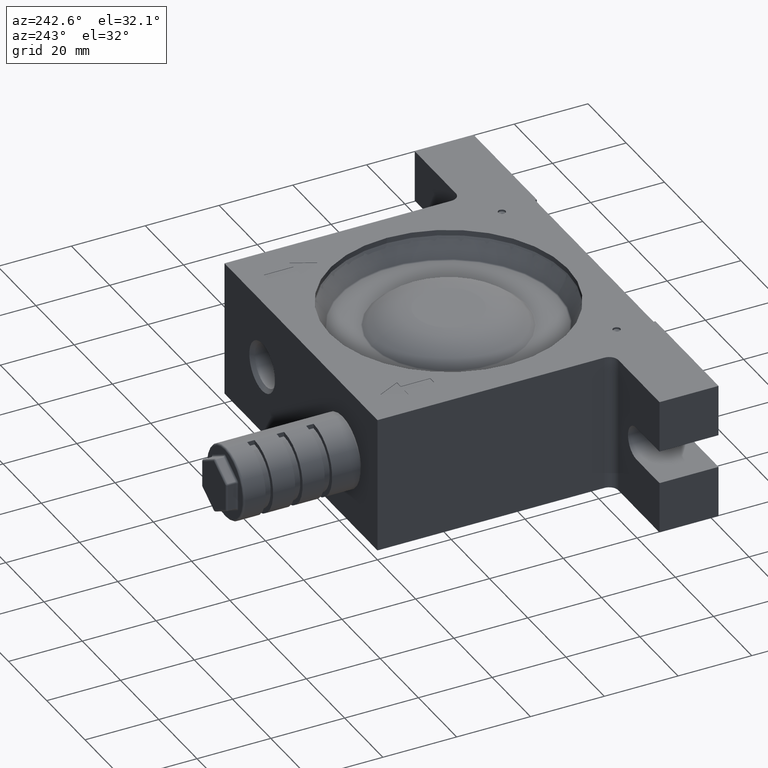
[diagram: clean part render]
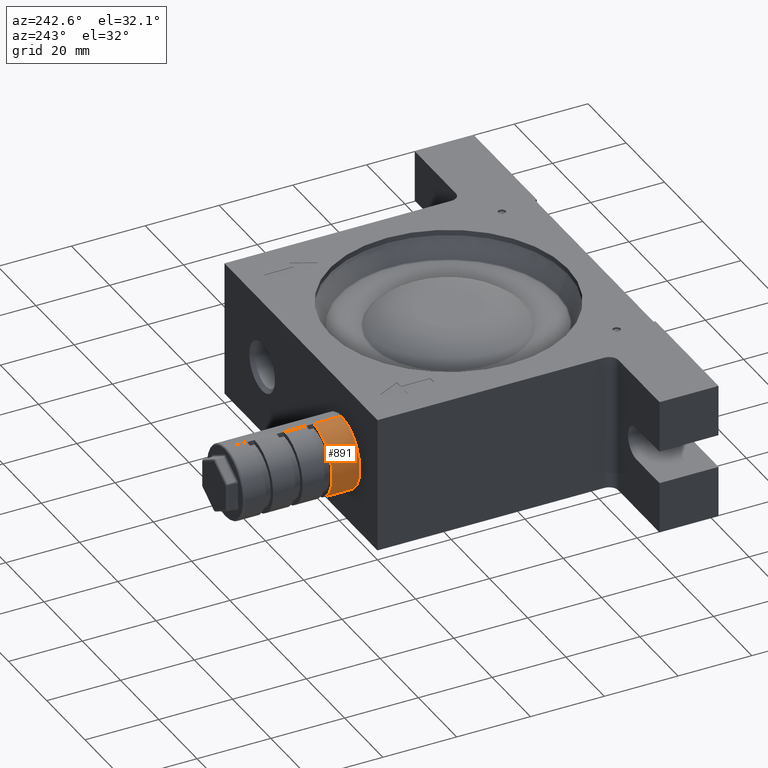
[diagram: same view with one face highlighted and labeled with its STEP entity id]
A machine part, auxiliary view. The second image highlights one B-rep face of the part: STEP entity #891.
In plain terms, the highlighted cylindrical surface (partial cylindrical patch) has radius 9.75 mm, axis along (-0, -1, -0).
Its self-contained STEP definition (entity closure, byte-faithful):
#29 = AXIS2_PLACEMENT_3D ( 'NONE', #6841, #1660, #6771 ) ;
#561 = CARTESIAN_POINT ( 'NONE',  ( -22.00000000000000000, 72.00000000000000000, 9.749999999999998200 ) ) ;
#650 = DIRECTION ( 'NONE',  ( -5.959270968386779200E-017, -1.000000000000000000, -1.089523766022739900E-016 ) ) ;
#788 = ORIENTED_EDGE ( 'NONE', *, *, #1110, .F. ) ;
#891 = ADVANCED_FACE ( 'NONE', ( #1529 ), #7478, .T. ) ;
#962 = EDGE_CURVE ( 'NONE', #2971, #4227, #7016, .T. ) ;
#1095 = AXIS2_PLACEMENT_3D ( 'NONE', #6203, #5118, #6784 ) ;
#1110 = EDGE_CURVE ( 'NONE', #2971, #7054, #7098, .T. ) ;
#1207 = ORIENTED_EDGE ( 'NONE', *, *, #2932, .F. ) ;
#1430 = ORIENTED_EDGE ( 'NONE', *, *, #3703, .T. ) ;
#1529 = FACE_OUTER_BOUND ( 'NONE', #7036, .T. ) ;
#1660 = DIRECTION ( 'NONE',  ( -5.959270968386779200E-017, -1.000000000000000000, -1.089523766022739900E-016 ) ) ;
#2003 = CIRCLE ( 'NONE', #7376, 9.750000000000000000 ) ;
#2111 = DIRECTION ( 'NONE',  ( 5.959270968386779200E-017, 1.000000000000000000, 1.089523766022739900E-016 ) ) ;
#2344 = CARTESIAN_POINT ( 'NONE',  ( -22.00000000000000700, 40.50000000000000000, -9.750000000000016000 ) ) ;
#2932 = EDGE_CURVE ( 'NONE', #7054, #7399, #6261, .T. ) ;
#2971 = VERTEX_POINT ( 'NONE', #5247 ) ;
#2996 = CARTESIAN_POINT ( 'NONE',  ( -22.00000000000000000, 40.50000000000000000, 9.749999999999984000 ) ) ;
#3530 = ORIENTED_EDGE ( 'NONE', *, *, #962, .T. ) ;
#3703 = EDGE_CURVE ( 'NONE', #4227, #7399, #2003, .T. ) ;
#3997 = CARTESIAN_POINT ( 'NONE',  ( -22.00000000000000400, 72.00000000000000000, -9.750000000000001800 ) ) ;
#4079 = DIRECTION ( 'NONE',  ( -5.959270968386779200E-017, -1.000000000000000000, -1.089523766022739900E-016 ) ) ;
#4227 = VERTEX_POINT ( 'NONE', #2344 ) ;
#4497 = CARTESIAN_POINT ( 'NONE',  ( -22.00000000000000000, 40.50000000000000000, -1.480388300893379800E-014 ) ) ;
#5033 = CARTESIAN_POINT ( 'NONE',  ( -22.00000000000000000, 48.00000000000000000, 9.750000000000000000 ) ) ;
#5118 = DIRECTION ( 'NONE',  ( 5.959270968386779200E-017, 1.000000000000000000, 1.089523766022739900E-016 ) ) ;
#5247 = CARTESIAN_POINT ( 'NONE',  ( -22.00000000000000000, 48.00000000000000000, -9.750000000000000000 ) ) ;
#5659 = VECTOR ( 'NONE', #650, 1000.000000000000000 ) ;
#6203 = CARTESIAN_POINT ( 'NONE',  ( -22.00000000000000000, 48.00000000000000000, -9.260952011193280300E-016 ) ) ;
#6261 = LINE ( 'NONE', #561, #7074 ) ;
#6771 = DIRECTION ( 'NONE',  ( 0.0000000000000000000, 0.0000000000000000000, 1.000000000000000000 ) ) ;
#6774 = DIRECTION ( 'NONE',  ( 0.0000000000000000000, 0.0000000000000000000, -1.000000000000000000 ) ) ;
#6784 = DIRECTION ( 'NONE',  ( 0.0000000000000000000, 0.0000000000000000000, -1.000000000000000000 ) ) ;
#6841 = CARTESIAN_POINT ( 'NONE',  ( -22.00000000000000000, 72.00000000000000000, -9.260952011193280300E-016 ) ) ;
#7016 = LINE ( 'NONE', #3997, #5659 ) ;
#7036 = EDGE_LOOP ( 'NONE', ( #788, #3530, #1430, #1207 ) ) ;
#7054 = VERTEX_POINT ( 'NONE', #5033 ) ;
#7074 = VECTOR ( 'NONE', #4079, 1000.000000000000000 ) ;
#7098 = CIRCLE ( 'NONE', #1095, 9.750000000000000000 ) ;
#7376 = AXIS2_PLACEMENT_3D ( 'NONE', #4497, #2111, #6774 ) ;
#7399 = VERTEX_POINT ( 'NONE', #2996 ) ;
#7478 = CYLINDRICAL_SURFACE ( 'NONE', #29, 9.750000000000000000 ) ;